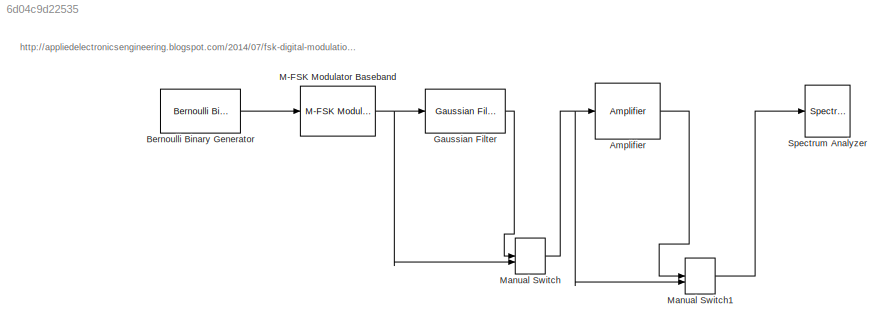
MODEL slx_6d04c9d22535
KIND model
CONFIG InitFcn = samp_per_frame = 32;\nfs = 1000000;\nsamp_per_sym = 16;\nBT = 0.5;\nmod_index = 0.33;\n
BLOCK [Reference] Amplifier  REF=rfmathmodels1/Amplifier
  GindB = 0
  GoutdB = 0
  Ports = [1, 1]
  PwrAMPMEnd = inf
  PwrAMPMStart = 10
  SourceBlock = rfmathmodels1/Amplifier
  SourceType = Amplifier
  am2pm = 10
  amam = [2.1587 1.1517]
  ampm = [4.0033 9.1040]
  iip3 = 30
  linGaindB = -90
  method_select = Noise factor
  model_select = Linear
  nfactor = 2
  nfigure = 3.01
  ntemp = 290
  p = 0.5
  seed = 67987
  vsat = 1
  x = [8.1081 1.5413 6.5202 -0.0718]
  y = [4.6645 2.0965 10.88 -0.003]
BLOCK [Reference] Bernoulli Binary Generator  REF=commrandsrc2/Bernoulli Binary
Generator
  P = 0.5
  Ports = [0, 1]
  SourceBlock = commrandsrc2/Bernoulli Binary\nGenerator
  SourceType = Bernoulli Binary Generator
  Ts = 1/fs
  frameBased = on
  orient = off
  outDataType = double
  sampPerFrame = samp_per_frame
  seed = 11
BLOCK [Reference] Gaussian Filter  REF=commobslib/Gaussian Filter
  BT = BT
  D = 1
  InputProcessing = Columns as channels (frame based)
  LockScale = off
  N = samp_per_sym
  Ports = [1, 1]
  SourceBlock = commobslib/Gaussian Filter
  SourceType = Gaussian Filter
  UserDataPersistent = on
  accumFracLength = 30
  accumMode = Same as product output
  accumWordLength = 32
  checkCoeff = off
  coeffFracLength = 15
  coeffMode = Same word length as input
  coeffWordLength = 16
  filterGain = 1
  launchFVT = off
  normMode = Sum of coefficients
  outputFracLength = 15
  outputMode = Same as accumulator
  outputWordLength = 16
  overflowMode = off
  prodOutputFracLength = 30
  prodOutputMode = Same as input
  prodOutputWordLength = 32
  roundingMode = Floor
  sampMode = Frame-based
  variableName = gaussFilt
BLOCK [Reference] M-FSK Modulator Baseband  REF=commdigbbndfm2/M-FSK
Modulator
Baseband
  Enc = Binary
  InType = Integer
  M = 2
  Ports = [1, 1]
  RateOptions = Enforce single-rate processing
  SourceBlock = commdigbbndfm2/M-FSK\nModulator\nBaseband
  SourceType = M-FSK Modulator Baseband
  UserDataPersistent = on
  freqSep = mod_index*fs
  numSamp = 16
  outDataType = double
  phaseType = Continuous
BLOCK [ManualSwitch] Manual Switch
BLOCK [ManualSwitch] Manual Switch1
  CurrentSetting = 0
BLOCK [SpectrumAnalyzer] Spectrum Analyzer
  Ports = [1]
  ScopeSpecificationString = spbscopes.SpectrumAnalyzerBlockCfg('CurrentConfiguration', extmgr.ConfigurationSet(extmgr.Configuration('Core','General UI',true),extmgr.Configuration('Core','Source UI',true),extmgr.Configuration('Sources','WiredSimulink',true),extmgr.Configuration('Visuals','Spectrum',true,'AxesProperties',struct('Color',[0 0 0],'XColor',[0.686274509803922 0.686274509803922 0.686274509803922],'YColor',[0.6862745...<+5936ch>
ANNOTATION (root): http://appliedelectronicsengineering.blogspot.com/2014/07/fsk-digital-modulation-example-in.html
LINE Amplifier:1 -> Manual Switch1:1
LINE Bernoulli Binary Generator:1 -> M-FSK Modulator Baseband:1
LINE Gaussian Filter:1 -> Manual Switch:1
NET M-FSK Modulator Baseband:1 -> Gaussian Filter:1, Manual Switch:2
LINE Manual Switch1:1 -> Spectrum Analyzer:1
NET Manual Switch:1 -> Amplifier:1, Manual Switch1:2
note: NET lines group one-source signal fan-out (src -> all destinations, sorted); 1:1 wires keep LINE
